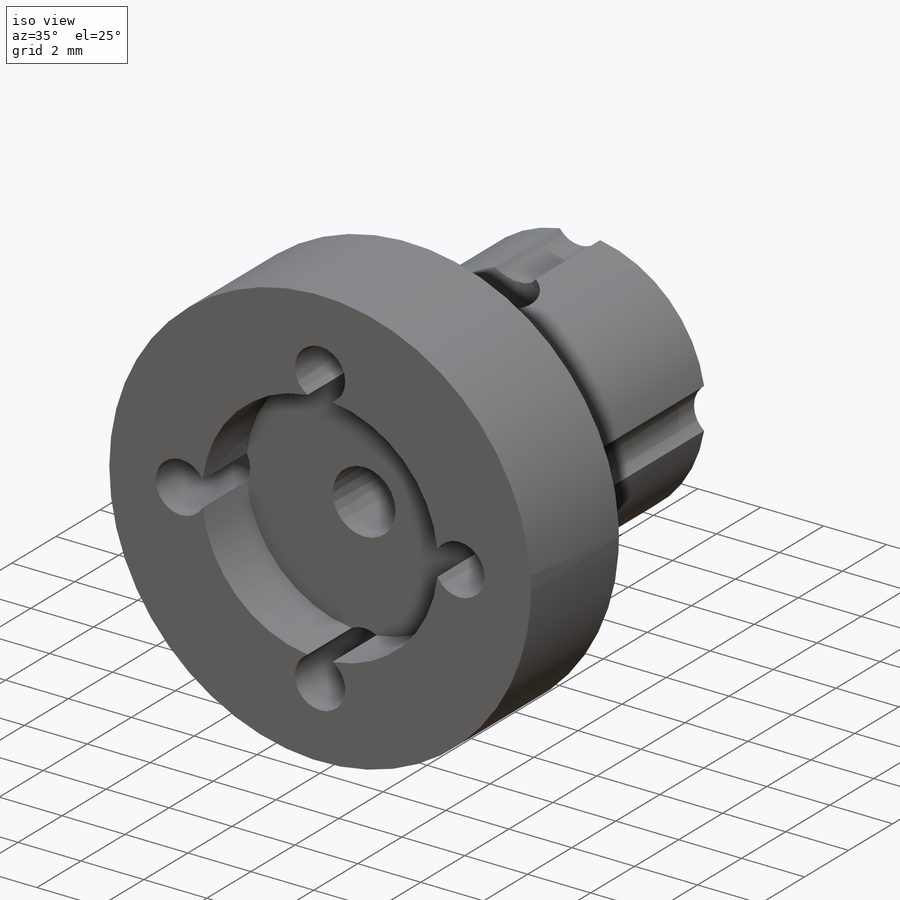
[diagram: iso view]
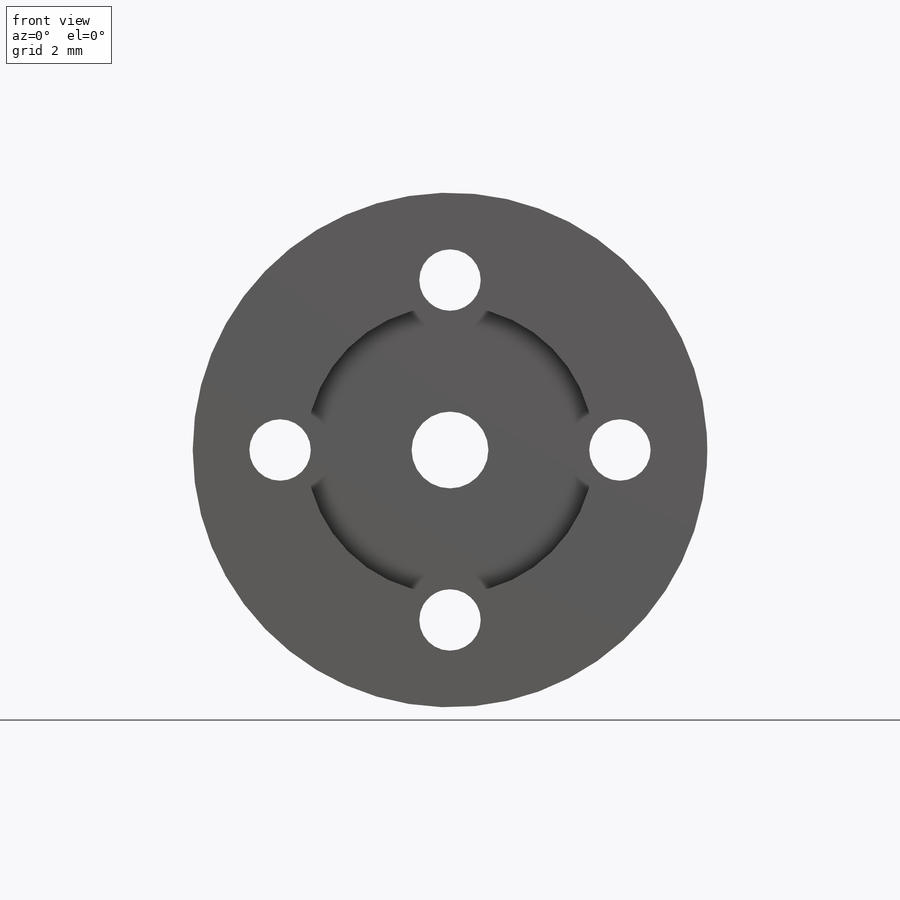
[diagram: front view]
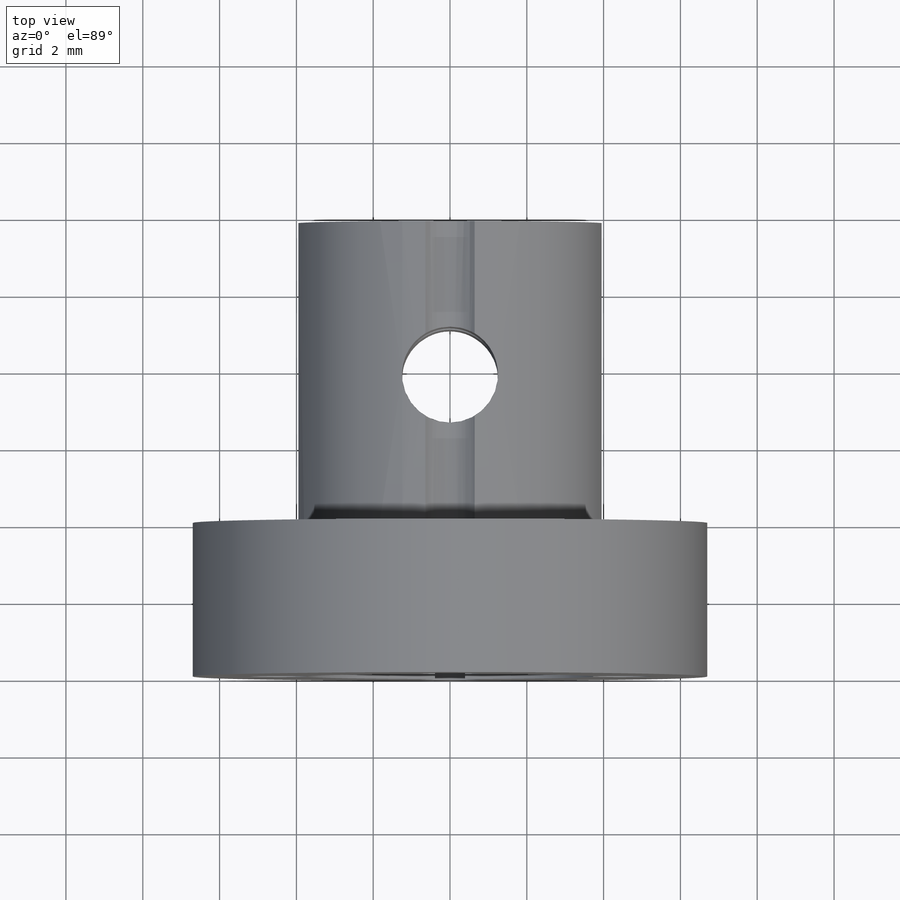
[diagram: top view]
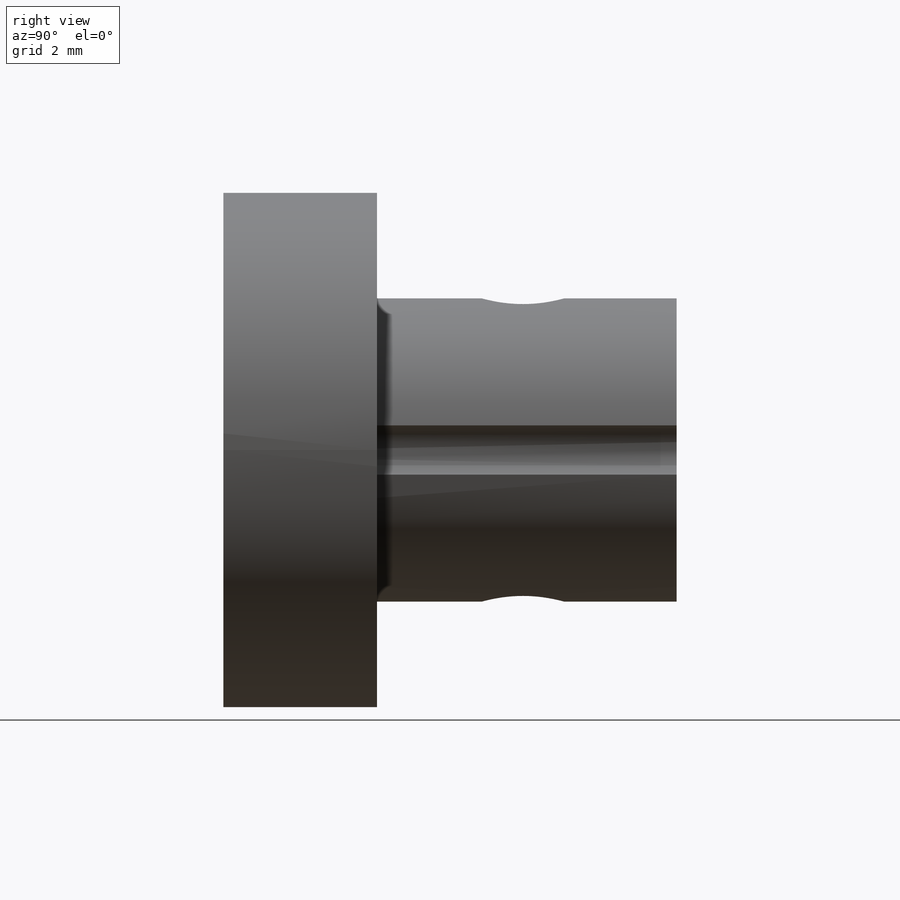
[diagram: right view]
SOLIDWORKS PART (.sldprt)
format: sldprt  version: not decoded by parser v0  size: 330,752 bytes
history: native  units: mm
features: sketch x7, thread x5, plane x3, extrude x3, hole x2, material x1 (+9 scaffold rows collapsed)
feature tree (30):
  scaffold x9  (default folders/planes/origin — collapsed)
  material  "1.4003 (X2CrNi12)"
  plane  "Ebene vorne"
  plane  "Ebene oben"
  plane  "Ebene rechts"
  sketch  "Skizze1"  dims[D1=7.5mm D2=13.4mm D3=2.0mm D4=8.0mm]
  extrude  "Aufsatz-Linear austragen1"  Depth=4mm
  extrude  "Aufsatz-Linear austragen2"  [1 undecoded]
  sketch  "Skizze1<4>"  dims[D1=7.8mm]
  extrude  "Aufsatz-Linear austragen3"  [1 undecoded]
  sketch  "Skizze1<6>"  dims[D1=2.0mm]
  hole  "M2 Gewindebohrung1"  [1 undecoded]
  sketch  "Skizze4"  dims[D1=8.85mm]
  thread  "Bohrungsgewinde1"  Diameter=2mm  [1 undecoded]
  thread  "Bohrungsgewinde2"  Diameter=2mm  [1 undecoded]
  thread  "Bohrungsgewinde3"  Diameter=2mm  [1 undecoded]
  thread  "Bohrungsgewinde4"  Diameter=2mm  [1 undecoded]
  sketch  "Skizze3"  dims[hole-wizard template sketch: 60 standard entries collapsed; hole parameters kept: c18.Bohrungstiefe=11.8mm]
  hole  "M3 Gewindebohrung1"  Diameter=2.5mm Depth=10.325mm
  sketch  "3D-Skizze1"  dims[D1=3.8mm]
  sketch  "Skizze7"  dims[hole-wizard template sketch: 60 standard entries collapsed; hole parameters kept: c18.Bohrungstiefe=10.325mm]
  thread  "Bohrungsgewinde11"  Diameter=3mm  [1 undecoded]
decode coverage: 14 of 17 modeling features carry decoded parameters
note: ~ marks probable driven/reference dimensions
note: 8 parameter values undecoded
summary: no parameter record found for 3 features
note: suppression state not decoded; provenance and decode notes live in map.json
